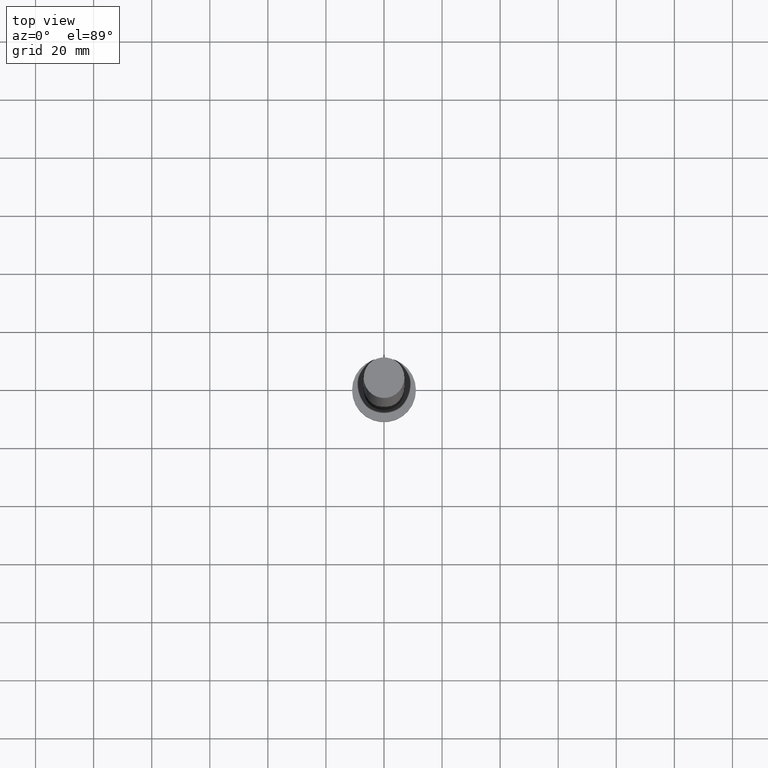
[diagram: clean part render]
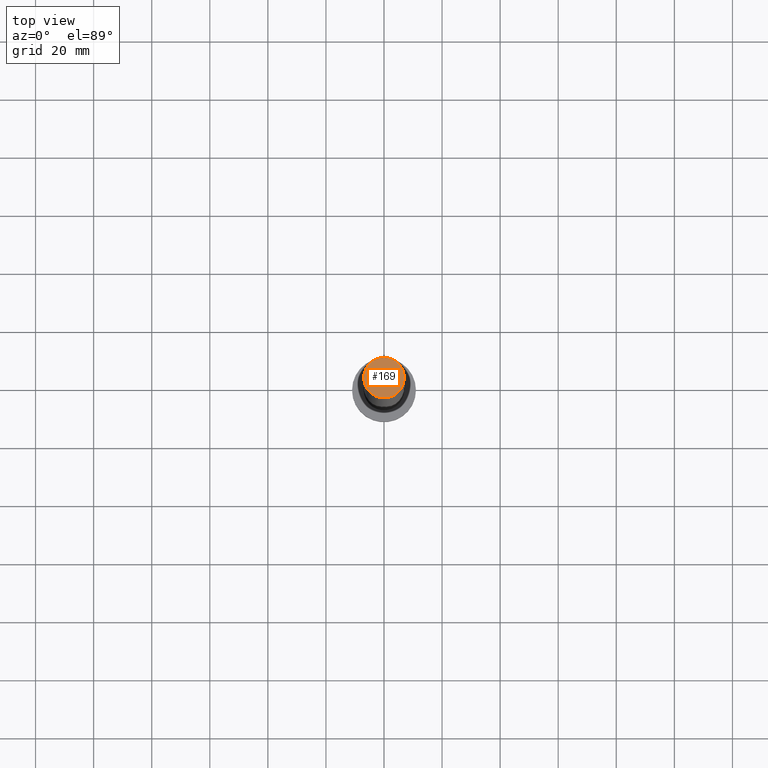
[diagram: same view with one face highlighted and labeled with its STEP entity id]
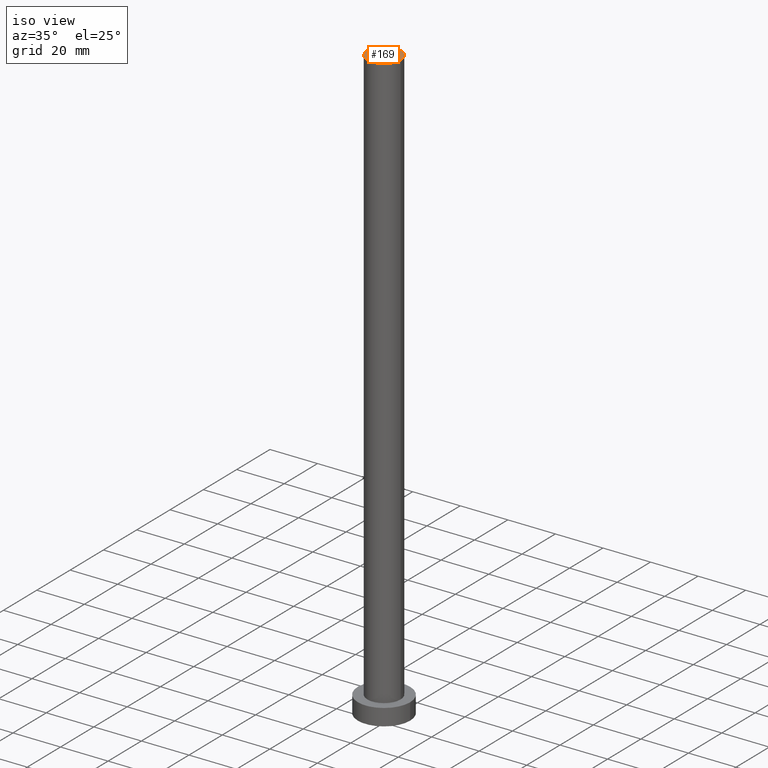
[diagram: same view with one face highlighted and labeled with its STEP entity id]
A machine part, top view. The second image highlights one B-rep face of the part: STEP entity #169.
A second angle (iso view) of the same face is appended — the face is thin or edge-on in the first view.
In plain terms, the highlighted planar face has unit normal (0, 0, 1).
Its self-contained STEP definition (entity closure, byte-faithful):
#1 = DIRECTION ( 'NONE',  ( 1.000000000000000000, 0.000000000000000000, 0.000000000000000000 ) ) ;
#3 = CIRCLE ( 'NONE', #72, 7.000000000000000000 ) ;
#5 = DIRECTION ( 'NONE',  ( 1.000000000000000000, 0.000000000000000000, -0.000000000000000000 ) ) ;
#18 = AXIS2_PLACEMENT_3D ( 'NONE', #167, #87, #1 ) ;
#42 = VERTEX_POINT ( 'NONE', #163 ) ;
#43 = VERTEX_POINT ( 'NONE', #62 ) ;
#62 = CARTESIAN_POINT ( 'NONE',  ( 7.000000000000000000, 8.572527594031473190E-16, 250.0000000000000000 ) ) ;
#69 = FACE_OUTER_BOUND ( 'NONE', #185, .T. ) ;
#72 = AXIS2_PLACEMENT_3D ( 'NONE', #85, #189, #119 ) ;
#84 = AXIS2_PLACEMENT_3D ( 'NONE', #93, #130, #5 ) ;
#85 = CARTESIAN_POINT ( 'NONE',  ( 0.000000000000000000, 0.000000000000000000, 250.0000000000000000 ) ) ;
#87 = DIRECTION ( 'NONE',  ( 0.000000000000000000, 0.000000000000000000, 1.000000000000000000 ) ) ;
#93 = CARTESIAN_POINT ( 'NONE',  ( 0.000000000000000000, 0.000000000000000000, 250.0000000000000000 ) ) ;
#113 = PLANE ( 'NONE',  #84 ) ;
#114 = CIRCLE ( 'NONE', #18, 7.000000000000000000 ) ;
#116 = EDGE_CURVE ( 'NONE', #42, #43, #114, .T. ) ;
#119 = DIRECTION ( 'NONE',  ( 1.000000000000000000, 0.000000000000000000, 0.000000000000000000 ) ) ;
#130 = DIRECTION ( 'NONE',  ( 0.000000000000000000, 0.000000000000000000, 1.000000000000000000 ) ) ;
#163 = CARTESIAN_POINT ( 'NONE',  ( -7.000000000000000000, 0.000000000000000000, 250.0000000000000000 ) ) ;
#167 = CARTESIAN_POINT ( 'NONE',  ( 0.000000000000000000, 0.000000000000000000, 250.0000000000000000 ) ) ;
#169 = ADVANCED_FACE ( 'NONE', ( #69 ), #113, .T. ) ;
#185 = EDGE_LOOP ( 'NONE', ( #225, #204 ) ) ;
#187 = EDGE_CURVE ( 'NONE', #43, #42, #3, .T. ) ;
#189 = DIRECTION ( 'NONE',  ( 0.000000000000000000, 0.000000000000000000, 1.000000000000000000 ) ) ;
#204 = ORIENTED_EDGE ( 'NONE', *, *, #187, .T. ) ;
#225 = ORIENTED_EDGE ( 'NONE', *, *, #116, .T. ) ;